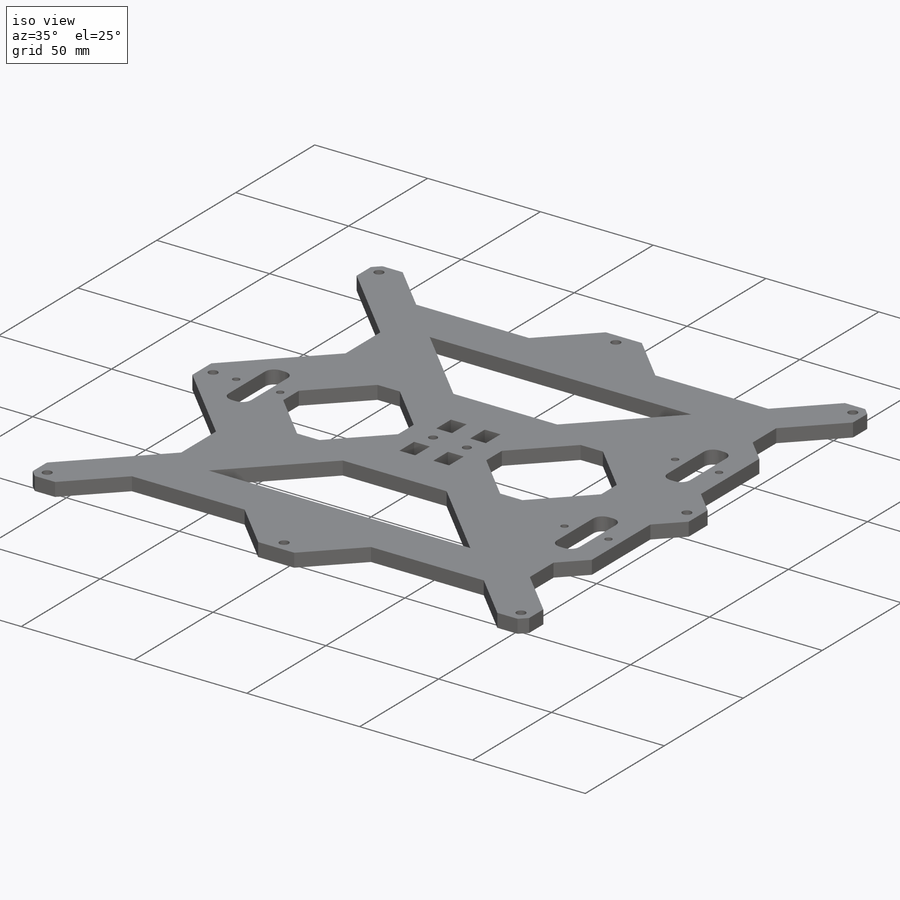
[diagram: iso view]
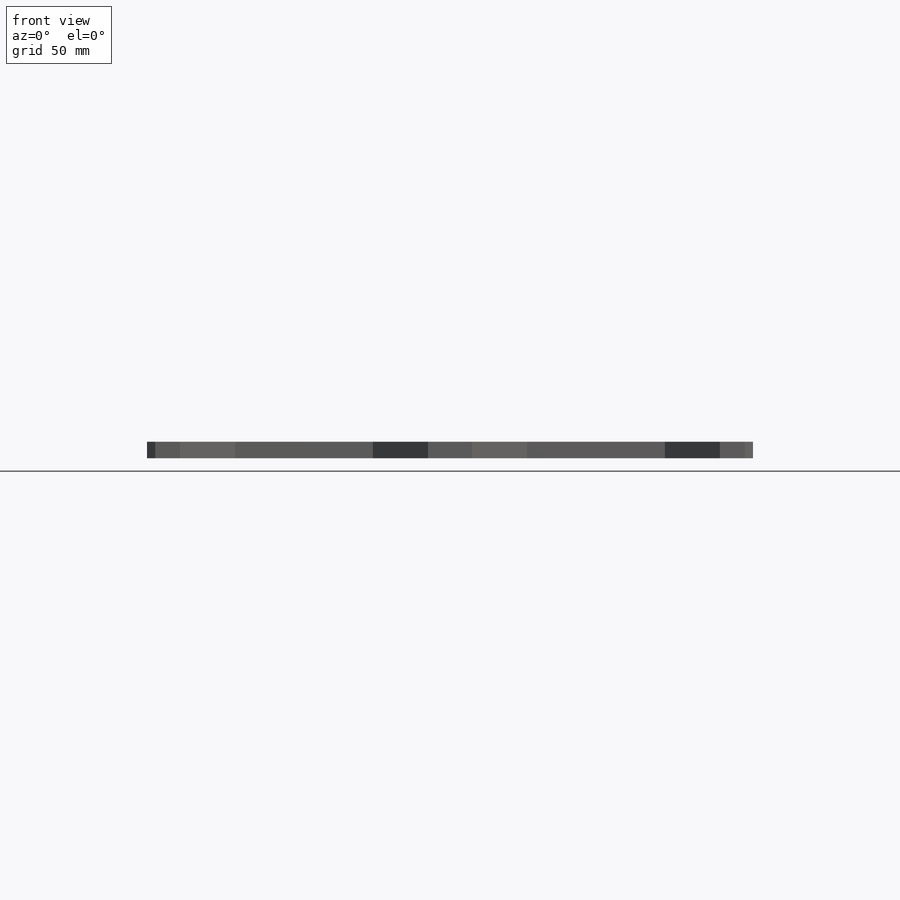
[diagram: front view]
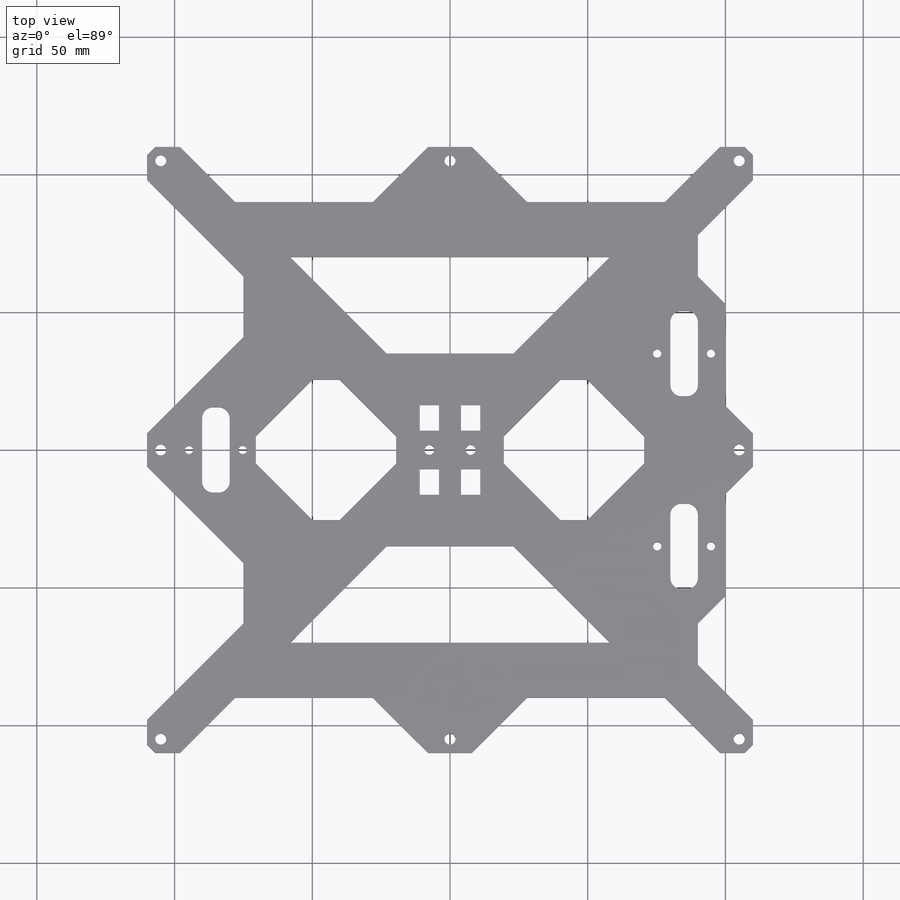
[diagram: top view]
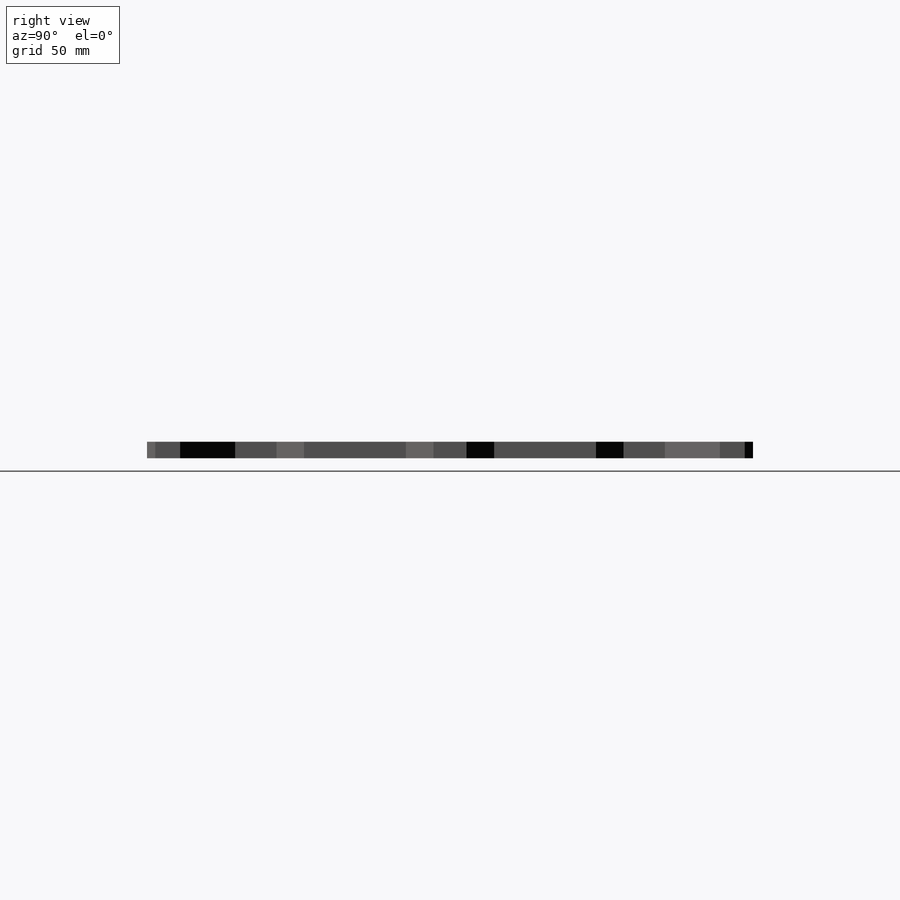
[diagram: right view]
SOLIDWORKS PART (.sldprt)
format: sldprt  version: not decoded by parser v0  size: 420,352 bytes
history: native  units: mm
features: sketch x6, mirror x6, cut_extrude x4, plane x3, extrude x3, chamfer x2, material x1 (+10 scaffold rows collapsed)
feature tree (35):
  scaffold x10  (default folders/planes/origin — collapsed)
  material  "Matériau <non spécifié>"
  plane  "Plan de face"
  plane  "Plan de dessus"
  plane  "Plan de droite"
  sketch  "Esquisse1"  dims[c1.D1=110.0mm c1.D2=7.75mm c1.D3=20.0mm c1.D4=~28.181818mm c2.D4=45.0deg c2.D5=50.0mm c2.D6=12.0mm c2.D7=35.0mm c2.D8=22.0mm c2.D2=110.0mm]
  extrude  "Boss.-Extru.1"  Depth=6mm
  sketch  "Esquisse3"  dims[D1=20.0mm D2=35.0mm]
  cut_extrude  "Enlèv. mat.-Extru.2"  Depth=6mm
  chamfer  "Chanfrein1"  Distance=3mm Angle=45deg
  mirror  "Symétrie3"
  sketch  "Esquisse4"  dims[c1.D1=3.6mm c1.D2=9.3mm c1.D3=7.0mm c1.D4=7.0mm c2.D1=7.5mm c2.D2=65.0mm c2.D3=43.0mm]
  cut_extrude  "Enlèv. mat.-Extru.3"  Depth=6mm
  extrude  "Chanfrein2"  Depth=7mm
  chamfer  "Symétrie5"  [1 undecoded]
  sketch  "Esquisse8"  dims[D1=10.0mm D2=15.0mm D3=10.0mm]
  extrude  "Boss.-Extru.2"  Depth=6mm
  sketch  "Esquisse11"  dims[D4=4.0mm D1=210.0mm D2=5.0mm D3=5.0mm D5=~4.378302mm]
  cut_extrude  "Enlèv. mat.-Extru.6"  Depth=6mm
  mirror  "Symétrie6"
  sketch  "Esquisse12"
  mirror  "Bloc-attache_bearing-1"
  mirror  "Bloc1"
  mirror  "Bloc1-1"
  mirror  "Bloc1-2"
  cut_extrude  "Enlèv. mat.-Extru.7"  Depth=10mm
decode coverage: 13 of 21 modeling features carry decoded parameters
note: ~ marks probable driven/reference dimensions
note: 1 parameter value undecoded
note: suppression state not decoded; provenance and decode notes live in map.json
